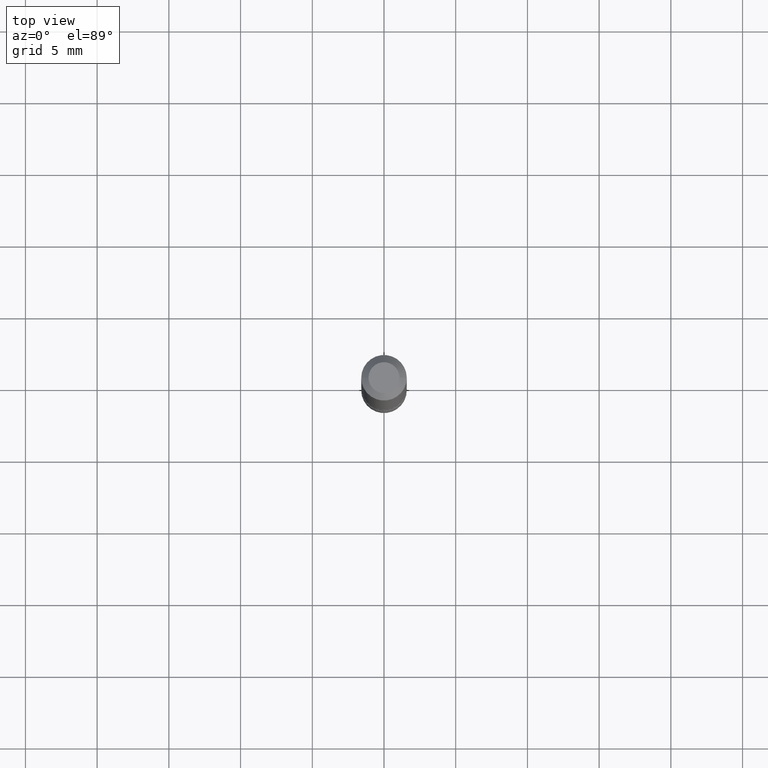
[diagram: clean part render]
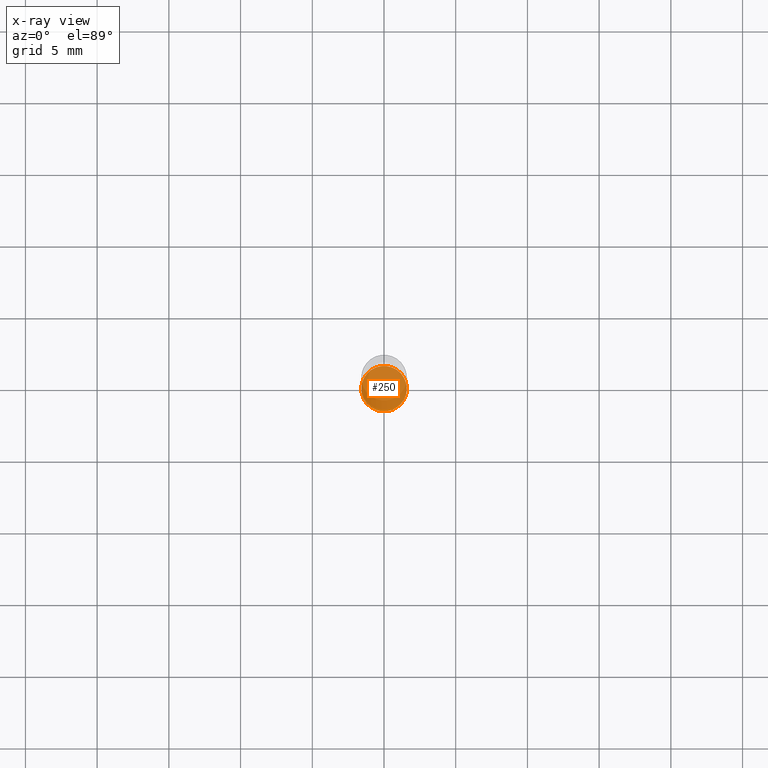
[diagram: x-ray — body ghosted, one internal face saturated and labeled with its STEP entity id]
A machine part, top view, then the same camera in x-ray: the body is ghosted and one INTERNAL B-rep face — a face not visible from any outside direction — is saturated and labeled: STEP entity #250.
In plain terms, the highlighted planar face has unit normal (0, -0, -1).
Its self-contained STEP definition (entity closure, byte-faithful):
#45 = DIRECTION ( 'NONE',  ( -2.445468806185136597E-29, 3.491481338843145583E-15, 1.000000000000000000 ) ) ;
#53 = DIRECTION ( 'NONE',  ( 1.000000000000000000, -6.982962677686271444E-15, 0.000000000000000000 ) ) ;
#62 = EDGE_CURVE ( 'NONE', #88, #103, #148, .T. ) ;
#88 = VERTEX_POINT ( 'NONE', #523 ) ;
#103 = VERTEX_POINT ( 'NONE', #389 ) ;
#112 = PLANE ( 'NONE',  #535 ) ;
#148 = CIRCLE ( 'NONE', #162, 0.06250000000000062450 ) ;
#154 = ORIENTED_EDGE ( 'NONE', *, *, #62, .T. ) ;
#162 = AXIS2_PLACEMENT_3D ( 'NONE', #224, #45, #306 ) ;
#174 = EDGE_LOOP ( 'NONE', ( #262, #154 ) ) ;
#224 = CARTESIAN_POINT ( 'NONE',  ( 4.279570410823987363E-29, -6.110092342975501516E-15, -1.749999999999999112 ) ) ;
#250 = ADVANCED_FACE ( 'NONE', ( #464 ), #112, .F. ) ;
#262 = ORIENTED_EDGE ( 'NONE', *, *, #322, .T. ) ;
#306 = DIRECTION ( 'NONE',  ( 1.000000000000000000, -6.982962677686271444E-15, 0.000000000000000000 ) ) ;
#310 = DIRECTION ( 'NONE',  ( -2.445468806185136597E-29, 3.491481338843145583E-15, 1.000000000000000000 ) ) ;
#322 = EDGE_CURVE ( 'NONE', #103, #88, #480, .T. ) ;
#389 = CARTESIAN_POINT ( 'NONE',  ( 0.06250000000000062450, -6.546527510330897918E-15, -1.749999999999999112 ) ) ;
#443 = CARTESIAN_POINT ( 'NONE',  ( 4.279570410823987363E-29, -6.110092342975501516E-15, -1.749999999999999112 ) ) ;
#454 = DIRECTION ( 'NONE',  ( 2.438088387897960049E-29, -3.491481338843145188E-15, -1.000000000000000000 ) ) ;
#459 = AXIS2_PLACEMENT_3D ( 'NONE', #443, #310, #53 ) ;
#462 = CARTESIAN_POINT ( 'NONE',  ( -6.403209434462905426E-29, -2.140844110749520751E-14, -1.749999999999998890 ) ) ;
#464 = FACE_OUTER_BOUND ( 'NONE', #174, .T. ) ;
#480 = CIRCLE ( 'NONE', #459, 0.06250000000000062450 ) ;
#502 = DIRECTION ( 'NONE',  ( -1.000000000000000000, 6.982962677686265922E-15, -4.876176775795935793E-29 ) ) ;
#523 = CARTESIAN_POINT ( 'NONE',  ( -0.06250000000000062450, -6.084980893786609222E-15, -1.749999999999999112 ) ) ;
#535 = AXIS2_PLACEMENT_3D ( 'NONE', #462, #454, #502 ) ;